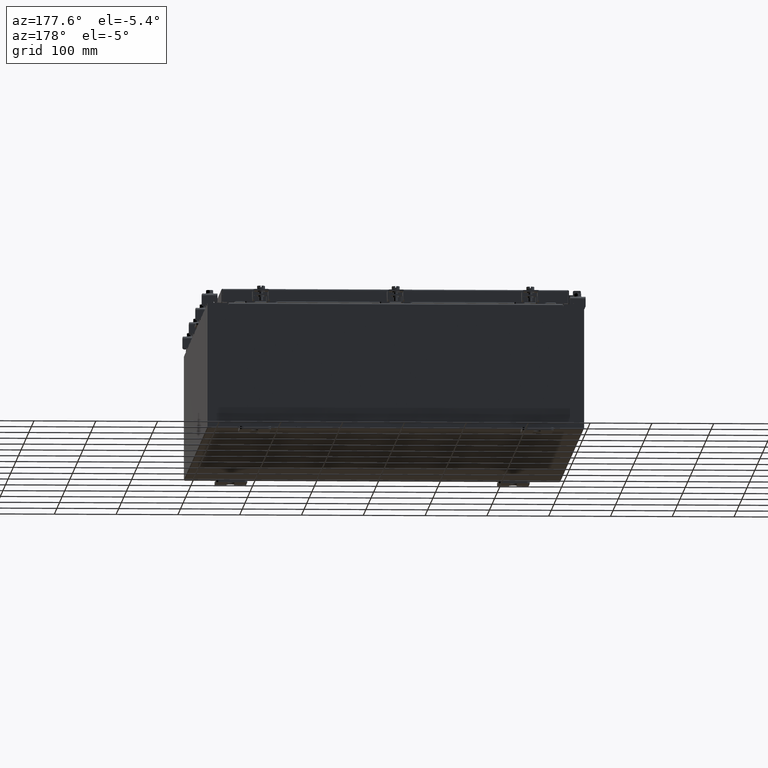
[diagram: clean part render]
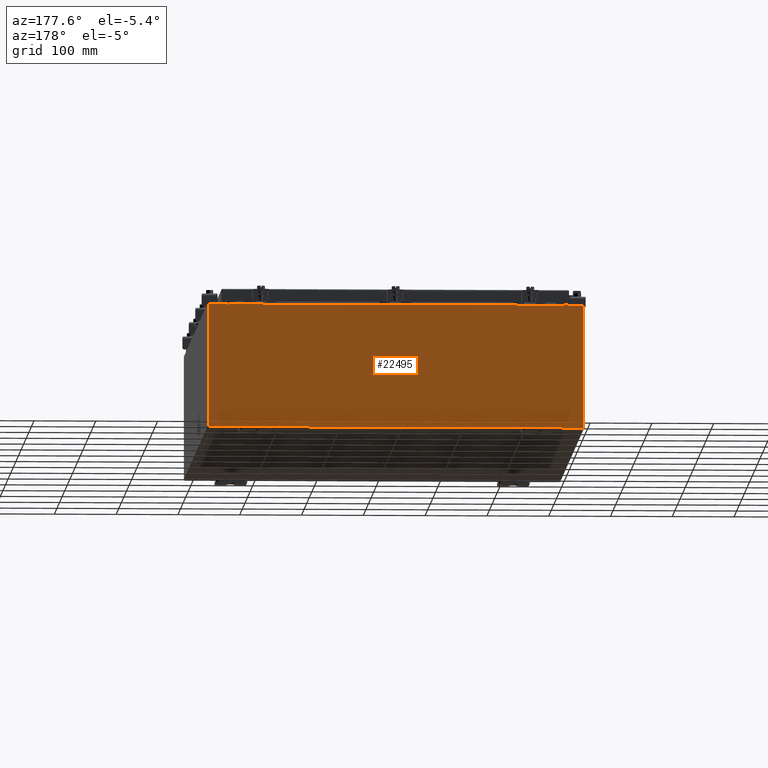
[diagram: same view with one face highlighted and labeled with its STEP entity id]
A machine part, auxiliary view. The second image highlights one B-rep face of the part: STEP entity #22495.
In plain terms, the highlighted planar face has unit normal (0, -1, 0).
Its self-contained STEP definition (entity closure, byte-faithful):
#85 = CARTESIAN_POINT ( 'NONE',  ( 10.63720000000000400, 0.0000000000000000000, 3.874949999999999700 ) ) ;
#90 = DIRECTION ( 'NONE',  ( 0.0000000000000000000, 0.0000000000000000000, -1.000000000000000000 ) ) ;
#143 = DIRECTION ( 'NONE',  ( -0.0000000000000000000, 1.000000000000000000, -0.0000000000000000000 ) ) ;
#220 = CARTESIAN_POINT ( 'NONE',  ( 10.65587500000000200, 0.0000000000000000000, 3.874949999999999700 ) ) ;
#797 = ORIENTED_EDGE ( 'NONE', *, *, #7914, .F. ) ;
#978 = CARTESIAN_POINT ( 'NONE',  ( -10.63720000000000400, -0.0000000000000000000, 3.874949999999999700 ) ) ;
#1126 = DIRECTION ( 'NONE',  ( -4.340572780400004900E-014, 0.0000000000000000000, -1.000000000000000000 ) ) ;
#1687 = EDGE_CURVE ( 'NONE', #5414, #8477, #22707, .T. ) ;
#1797 = EDGE_CURVE ( 'NONE', #7201, #16781, #1921, .T. ) ;
#1921 = LINE ( 'NONE', #2278, #20470 ) ;
#2278 = CARTESIAN_POINT ( 'NONE',  ( 10.63720000000000400, 0.0000000000000000000, 0.0000000000000000000 ) ) ;
#2496 = CARTESIAN_POINT ( 'NONE',  ( 10.63720000000000400, 0.0000000000000000000, 3.912299999999999700 ) ) ;
#2646 = ORIENTED_EDGE ( 'NONE', *, *, #1687, .T. ) ;
#2655 = CARTESIAN_POINT ( 'NONE',  ( -10.67455000000000200, 0.0000000000000000000, 3.925299999999999600 ) ) ;
#3047 = ORIENTED_EDGE ( 'NONE', *, *, #4482, .F. ) ;
#3475 = CARTESIAN_POINT ( 'NONE',  ( 11.92530000000000000, 0.0000000000000000000, -3.925299999999999600 ) ) ;
#3558 = LINE ( 'NONE', #15266, #4365 ) ;
#3782 = FACE_OUTER_BOUND ( 'NONE', #11690, .T. ) ;
#3797 = VECTOR ( 'NONE', #10254, 39.37007874015748100 ) ;
#4087 = ORIENTED_EDGE ( 'NONE', *, *, #7599, .T. ) ;
#4123 = VECTOR ( 'NONE', #21583, 39.37007874015748100 ) ;
#4181 = ORIENTED_EDGE ( 'NONE', *, *, #18623, .T. ) ;
#4365 = VECTOR ( 'NONE', #6267, 39.37007874015748100 ) ;
#4371 = CARTESIAN_POINT ( 'NONE',  ( 10.67455000000000200, 0.0000000000000000000, 3.925299999999999600 ) ) ;
#4462 = CARTESIAN_POINT ( 'NONE',  ( 0.0000000000000000000, 0.0000000000000000000, 0.0000000000000000000 ) ) ;
#4482 = EDGE_CURVE ( 'NONE', #14612, #7201, #19291, .T. ) ;
#4678 = DIRECTION ( 'NONE',  ( 1.000000000000000000, 0.0000000000000000000, 0.0000000000000000000 ) ) ;
#5181 = DIRECTION ( 'NONE',  ( 0.0000000000000000000, 0.0000000000000000000, 1.000000000000000000 ) ) ;
#5257 = DIRECTION ( 'NONE',  ( -0.0000000000000000000, 1.000000000000000000, -0.0000000000000000000 ) ) ;
#5414 = VERTEX_POINT ( 'NONE', #12480 ) ;
#5912 = VERTEX_POINT ( 'NONE', #16314 ) ;
#6267 = DIRECTION ( 'NONE',  ( 0.0000000000000000000, 0.0000000000000000000, -1.000000000000000000 ) ) ;
#6383 = VERTEX_POINT ( 'NONE', #978 ) ;
#6886 = LINE ( 'NONE', #21335, #22431 ) ;
#7088 = LINE ( 'NONE', #21541, #16175 ) ;
#7201 = VERTEX_POINT ( 'NONE', #85 ) ;
#7599 = EDGE_CURVE ( 'NONE', #12080, #5414, #9822, .T. ) ;
#7914 = EDGE_CURVE ( 'NONE', #6383, #10682, #22240, .T. ) ;
#8047 = PLANE ( 'NONE',  #19140 ) ;
#8134 = ORIENTED_EDGE ( 'NONE', *, *, #12793, .F. ) ;
#8477 = VERTEX_POINT ( 'NONE', #3475 ) ;
#8555 = CARTESIAN_POINT ( 'NONE',  ( -10.67455000000000200, -0.0000000000000000000, 0.0000000000000000000 ) ) ;
#8680 = ORIENTED_EDGE ( 'NONE', *, *, #15442, .T. ) ;
#8888 = LINE ( 'NONE', #15471, #16262 ) ;
#9389 = DIRECTION ( 'NONE',  ( -1.000000000000000000, -0.0000000000000000000, -0.0000000000000000000 ) ) ;
#9592 = LINE ( 'NONE', #22020, #13821 ) ;
#9684 = CARTESIAN_POINT ( 'NONE',  ( -10.63720000000000400, 1.024442997624098700E-016, 3.912299999999999700 ) ) ;
#9822 = LINE ( 'NONE', #22541, #14648 ) ;
#9849 = DIRECTION ( 'NONE',  ( 0.0000000000000000000, -1.000000000000000000, 0.0000000000000000000 ) ) ;
#9898 = DIRECTION ( 'NONE',  ( 1.000000000000000000, 0.0000000000000000000, 0.0000000000000000000 ) ) ;
#10254 = DIRECTION ( 'NONE',  ( 0.0000000000000000000, 0.0000000000000000000, 1.000000000000000000 ) ) ;
#10498 = DIRECTION ( 'NONE',  ( -0.0000000000000000000, -0.0000000000000000000, 1.000000000000000000 ) ) ;
#10682 = VERTEX_POINT ( 'NONE', #17163 ) ;
#11470 = EDGE_CURVE ( 'NONE', #5912, #14364, #6886, .T. ) ;
#11690 = EDGE_LOOP ( 'NONE', ( #15018, #797, #8134, #4181, #13115, #3047, #12369, #4087, #2646, #8680, #17240, #18448 ) ) ;
#12063 = VERTEX_POINT ( 'NONE', #9684 ) ;
#12080 = VERTEX_POINT ( 'NONE', #4371 ) ;
#12369 = ORIENTED_EDGE ( 'NONE', *, *, #22559, .F. ) ;
#12480 = CARTESIAN_POINT ( 'NONE',  ( 11.92530000000000000, 0.0000000000000000000, 3.925299999999999600 ) ) ;
#12793 = EDGE_CURVE ( 'NONE', #12063, #6383, #3558, .T. ) ;
#13115 = ORIENTED_EDGE ( 'NONE', *, *, #1797, .F. ) ;
#13352 = LINE ( 'NONE', #8555, #3797 ) ;
#13468 = EDGE_CURVE ( 'NONE', #10682, #14893, #13352, .T. ) ;
#13821 = VECTOR ( 'NONE', #9389, 39.37007874015748100 ) ;
#14235 = EDGE_CURVE ( 'NONE', #14364, #14893, #7088, .T. ) ;
#14364 = VERTEX_POINT ( 'NONE', #16674 ) ;
#14612 = VERTEX_POINT ( 'NONE', #17743 ) ;
#14648 = VECTOR ( 'NONE', #9898, 39.37007874015748100 ) ;
#14893 = VERTEX_POINT ( 'NONE', #2655 ) ;
#15018 = ORIENTED_EDGE ( 'NONE', *, *, #13468, .F. ) ;
#15266 = CARTESIAN_POINT ( 'NONE',  ( -10.63720000000000400, -0.0000000000000000000, 0.0000000000000000000 ) ) ;
#15391 = CARTESIAN_POINT ( 'NONE',  ( 10.67454999999983300, -0.0000000000000000000, -4.633366117301815000E-013 ) ) ;
#15442 = EDGE_CURVE ( 'NONE', #8477, #5912, #9592, .T. ) ;
#15471 = CARTESIAN_POINT ( 'NONE',  ( -10.63720000000000400, 1.024442997624098700E-016, 3.912299999999999700 ) ) ;
#16090 = CARTESIAN_POINT ( 'NONE',  ( -10.65587500000000200, 0.0000000000000000000, 3.874949999999999700 ) ) ;
#16175 = VECTOR ( 'NONE', #18033, 39.37007874015748100 ) ;
#16262 = VECTOR ( 'NONE', #4678, 39.37007874015748100 ) ;
#16314 = CARTESIAN_POINT ( 'NONE',  ( -11.92530000000000000, 0.0000000000000000000, -3.925299999999999600 ) ) ;
#16467 = VECTOR ( 'NONE', #1126, 39.37007874015748100 ) ;
#16674 = CARTESIAN_POINT ( 'NONE',  ( -11.92530000000000000, 0.0000000000000000000, 3.925299999999999600 ) ) ;
#16781 = VERTEX_POINT ( 'NONE', #2496 ) ;
#17163 = CARTESIAN_POINT ( 'NONE',  ( -10.67455000000000200, 0.0000000000000000000, 3.874949999999999700 ) ) ;
#17240 = ORIENTED_EDGE ( 'NONE', *, *, #11470, .T. ) ;
#17743 = CARTESIAN_POINT ( 'NONE',  ( 10.67455000000000200, 0.0000000000000000000, 3.874949999999999700 ) ) ;
#17919 = DIRECTION ( 'NONE',  ( 0.0000000000000000000, 0.0000000000000000000, -1.000000000000000000 ) ) ;
#18033 = DIRECTION ( 'NONE',  ( 1.000000000000000000, 0.0000000000000000000, 0.0000000000000000000 ) ) ;
#18448 = ORIENTED_EDGE ( 'NONE', *, *, #14235, .T. ) ;
#18623 = EDGE_CURVE ( 'NONE', #12063, #16781, #8888, .T. ) ;
#19140 = AXIS2_PLACEMENT_3D ( 'NONE', #4462, #9849, #22486 ) ;
#19291 = CIRCLE ( 'NONE', #20341, 0.01867499999999949400 ) ;
#20341 = AXIS2_PLACEMENT_3D ( 'NONE', #220, #143, #90 ) ;
#20470 = VECTOR ( 'NONE', #5181, 39.37007874015748100 ) ;
#21227 = LINE ( 'NONE', #15391, #16467 ) ;
#21335 = CARTESIAN_POINT ( 'NONE',  ( -11.92530000000000000, 0.0000000000000000000, 3.925299999999999600 ) ) ;
#21541 = CARTESIAN_POINT ( 'NONE',  ( -11.92530000000000000, 0.0000000000000000000, 3.925299999999999600 ) ) ;
#21583 = DIRECTION ( 'NONE',  ( 0.0000000000000000000, 0.0000000000000000000, -1.000000000000000000 ) ) ;
#21910 = CARTESIAN_POINT ( 'NONE',  ( 11.92530000000000000, 0.0000000000000000000, 3.925299999999999600 ) ) ;
#22020 = CARTESIAN_POINT ( 'NONE',  ( -11.92530000000000000, 0.0000000000000000000, -3.925299999999999600 ) ) ;
#22240 = CIRCLE ( 'NONE', #22944, 0.01867499999999949400 ) ;
#22431 = VECTOR ( 'NONE', #10498, 39.37007874015748100 ) ;
#22486 = DIRECTION ( 'NONE',  ( 0.0000000000000000000, -0.0000000000000000000, -1.000000000000000000 ) ) ;
#22495 = ADVANCED_FACE ( 'NONE', ( #3782 ), #8047, .F. ) ;
#22541 = CARTESIAN_POINT ( 'NONE',  ( -11.92530000000000000, 0.0000000000000000000, 3.925299999999999600 ) ) ;
#22559 = EDGE_CURVE ( 'NONE', #12080, #14612, #21227, .T. ) ;
#22707 = LINE ( 'NONE', #21910, #4123 ) ;
#22944 = AXIS2_PLACEMENT_3D ( 'NONE', #16090, #5257, #17919 ) ;